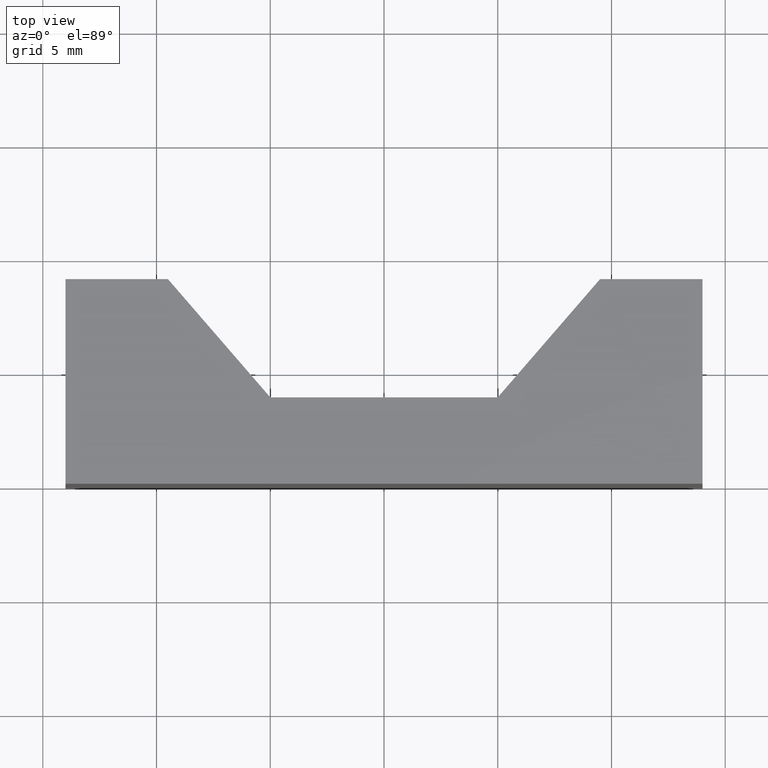
[diagram: clean part render]
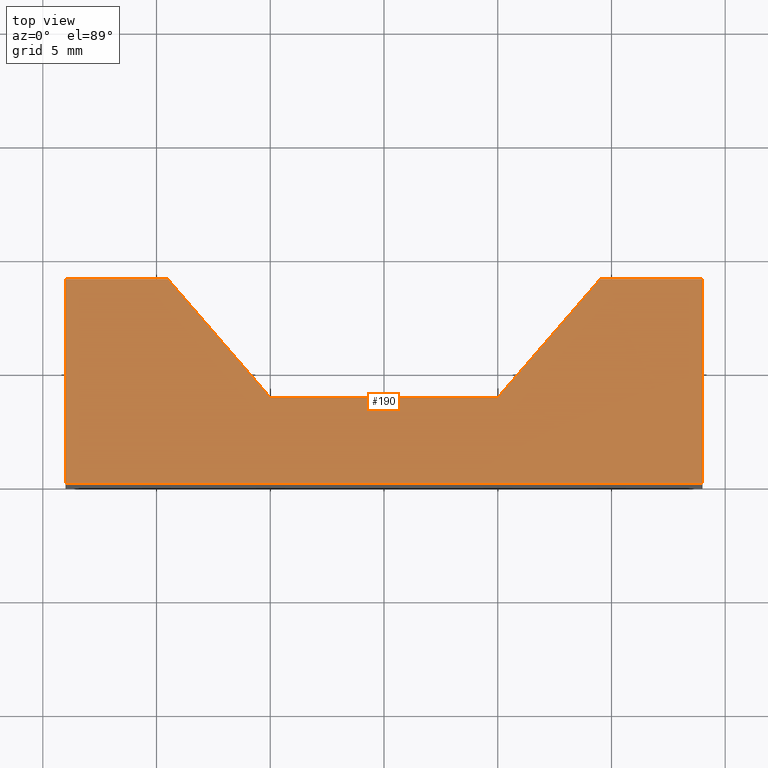
[diagram: same view with one face highlighted and labeled with its STEP entity id]
A machine part, top view. The second image highlights one B-rep face of the part: STEP entity #190.
In plain terms, the highlighted planar face has unit normal (0, 0, 1).
Its self-contained STEP definition (entity closure, byte-faithful):
#24=FACE_OUTER_BOUND('',#34,.T.);
#34=EDGE_LOOP('',(#156,#157,#158,#159,#160,#161,#162,#163));
#36=LINE('',#275,#60);
#40=LINE('',#283,#64);
#43=LINE('',#289,#67);
#46=LINE('',#295,#70);
#49=LINE('',#301,#73);
#52=LINE('',#307,#76);
#55=LINE('',#313,#79);
#58=LINE('',#318,#82);
#60=VECTOR('',#229,10.);
#64=VECTOR('',#235,10.);
#67=VECTOR('',#240,10.);
#70=VECTOR('',#245,10.);
#73=VECTOR('',#250,10.);
#76=VECTOR('',#255,10.);
#79=VECTOR('',#260,10.);
#82=VECTOR('',#265,10.);
#84=VERTEX_POINT('',#273);
#85=VERTEX_POINT('',#274);
#88=VERTEX_POINT('',#282);
#90=VERTEX_POINT('',#288);
#92=VERTEX_POINT('',#294);
#94=VERTEX_POINT('',#300);
#96=VERTEX_POINT('',#306);
#98=VERTEX_POINT('',#312);
#100=EDGE_CURVE('',#84,#85,#36,.T.);
#104=EDGE_CURVE('',#85,#88,#40,.T.);
#107=EDGE_CURVE('',#88,#90,#43,.T.);
#110=EDGE_CURVE('',#90,#92,#46,.T.);
#113=EDGE_CURVE('',#92,#94,#49,.T.);
#116=EDGE_CURVE('',#94,#96,#52,.T.);
#119=EDGE_CURVE('',#96,#98,#55,.T.);
#122=EDGE_CURVE('',#98,#84,#58,.T.);
#156=ORIENTED_EDGE('',*,*,#100,.F.);
#157=ORIENTED_EDGE('',*,*,#122,.F.);
#158=ORIENTED_EDGE('',*,*,#119,.F.);
#159=ORIENTED_EDGE('',*,*,#116,.F.);
#160=ORIENTED_EDGE('',*,*,#113,.F.);
#161=ORIENTED_EDGE('',*,*,#110,.F.);
#162=ORIENTED_EDGE('',*,*,#107,.F.);
#163=ORIENTED_EDGE('',*,*,#104,.F.);
#180=PLANE('',#223);
#190=ADVANCED_FACE('',(#24),#180,.T.);
#223=AXIS2_PLACEMENT_3D('',#320,#267,#268);
#229=DIRECTION('',(0.,1.,0.));
#235=DIRECTION('',(1.,0.,0.));
#240=DIRECTION('',(0.654376744438942,-0.756168682462777,0.));
#245=DIRECTION('',(1.,0.,0.));
#250=DIRECTION('',(0.654376744438942,0.756168682462777,0.));
#255=DIRECTION('',(1.,0.,0.));
#260=DIRECTION('',(0.,-1.,0.));
#265=DIRECTION('',(-1.,0.,0.));
#267=DIRECTION('center_axis',(0.,0.,1.));
#268=DIRECTION('ref_axis',(1.,0.,0.));
#273=CARTESIAN_POINT('',(-14.,0.,13.));
#274=CARTESIAN_POINT('',(-14.,9.,13.));
#275=CARTESIAN_POINT('',(-14.,0.,13.));
#282=CARTESIAN_POINT('',(-9.5,9.,13.));
#283=CARTESIAN_POINT('',(-14.,9.,13.));
#288=CARTESIAN_POINT('',(-5.,3.8,13.));
#289=CARTESIAN_POINT('',(-9.5,9.,13.));
#294=CARTESIAN_POINT('',(5.,3.8,13.));
#295=CARTESIAN_POINT('',(-5.,3.8,13.));
#300=CARTESIAN_POINT('',(9.5,9.,13.));
#301=CARTESIAN_POINT('',(5.,3.8,13.));
#306=CARTESIAN_POINT('',(14.,9.,13.));
#307=CARTESIAN_POINT('',(9.5,9.,13.));
#312=CARTESIAN_POINT('',(14.,0.,13.));
#313=CARTESIAN_POINT('',(14.,9.,13.));
#318=CARTESIAN_POINT('',(14.,0.,13.));
#320=CARTESIAN_POINT('Origin',(8.32667268468867E-16,3.65726632360889,13.));